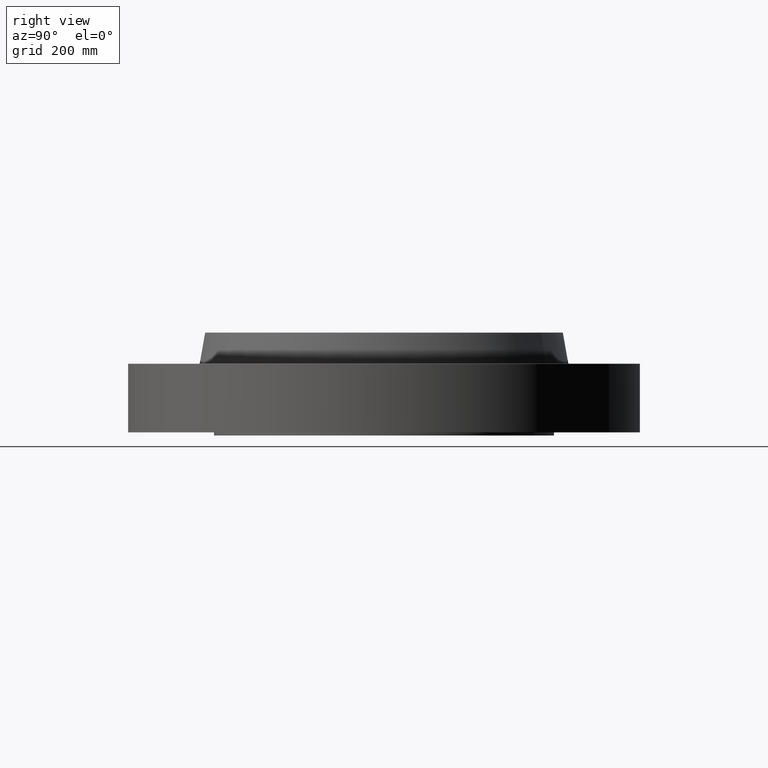
[diagram: clean part render]
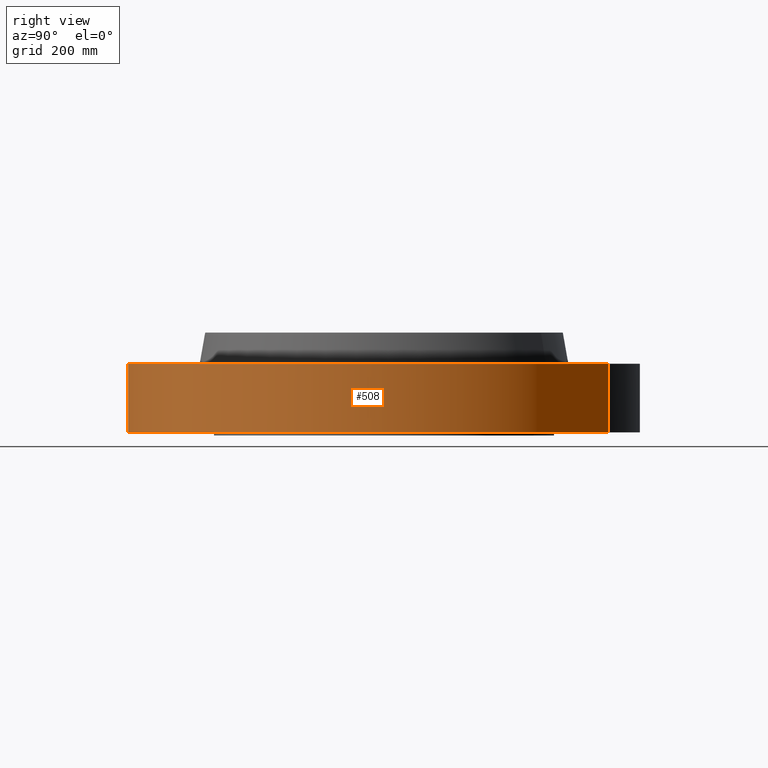
[diagram: same view with one face highlighted and labeled with its STEP entity id]
A machine part, right view. The second image highlights one B-rep face of the part: STEP entity #508.
In plain terms, the highlighted cylindrical surface (partial cylindrical patch) has radius 520.7 mm, axis along (0, 0, -1).
Its self-contained STEP definition (entity closure, byte-faithful):
#455=AXIS2_PLACEMENT_3D('Cylinder Axis2P3D',#452,#453,#454) ;
#494=AXIS2_PLACEMENT_3D('Circle Axis2P3D',#492,#493,$) ;
#499=AXIS2_PLACEMENT_3D('Circle Axis2P3D',#497,#498,$) ;
#452=CARTESIAN_POINT('Axis2P3D Location',(0.,0.,3.87500000002)) ;
#461=CARTESIAN_POINT('Vertex',(-9.82822354143,-17.9904425188,2.23792987641E-015)) ;
#463=CARTESIAN_POINT('Vertex',(9.82822354143,17.9904425188,2.23792987641E-015)) ;
#466=CARTESIAN_POINT('Line Origine',(-9.82822354143,-17.9904425188,2.75000000001)) ;
#470=CARTESIAN_POINT('Vertex',(-9.82822354143,-17.9904425188,5.50000000002)) ;
#477=CARTESIAN_POINT('Vertex',(9.82822354143,17.9904425188,5.50000000002)) ;
#480=CARTESIAN_POINT('Line Origine',(9.82822354143,17.9904425188,2.75000000001)) ;
#492=CARTESIAN_POINT('Axis2P3D Location',(0.,0.,2.23792987641E-015)) ;
#497=CARTESIAN_POINT('Axis2P3D Location',(0.,0.,5.50000000002)) ;
#453=DIRECTION('Axis2P3D Direction',(0.,0.,-0.0393700787402)) ;
#454=DIRECTION('Axis2P3D XDirection',(0.0188750212049,0.0345504945626,0.)) ;
#467=DIRECTION('Vector Direction',(0.,0.,-0.0393700787402)) ;
#481=DIRECTION('Vector Direction',(0.,0.,-0.0393700787402)) ;
#493=DIRECTION('Axis2P3D Direction',(0.,0.,-0.0393700787402)) ;
#498=DIRECTION('Axis2P3D Direction',(0.,0.,-0.0393700787402)) ;
#468=VECTOR('Line Direction',#467,0.0393700787402) ;
#482=VECTOR('Line Direction',#481,0.0393700787402) ;
#503=ORIENTED_EDGE('',*,*,#496,.F.) ;
#504=ORIENTED_EDGE('',*,*,#484,.T.) ;
#505=ORIENTED_EDGE('',*,*,#501,.T.) ;
#506=ORIENTED_EDGE('',*,*,#472,.F.) ;
#508=ADVANCED_FACE('PartBody',(#507),#456,.T.) ;
#495=CIRCLE('generated circle',#494,20.5000000001) ;
#500=CIRCLE('generated circle',#499,20.5000000001) ;
#456=CYLINDRICAL_SURFACE('generated cylinder',#455,20.5000000001) ;
#472=EDGE_CURVE('',#462,#471,#469,.F.) ;
#484=EDGE_CURVE('',#464,#478,#483,.F.) ;
#496=EDGE_CURVE('',#464,#462,#495,.T.) ;
#501=EDGE_CURVE('',#478,#471,#500,.T.) ;
#502=EDGE_LOOP('',(#503,#504,#505,#506)) ;
#507=FACE_OUTER_BOUND('',#502,.T.) ;
#469=LINE('Line',#466,#468) ;
#483=LINE('Line',#480,#482) ;
#462=VERTEX_POINT('',#461) ;
#464=VERTEX_POINT('',#463) ;
#471=VERTEX_POINT('',#470) ;
#478=VERTEX_POINT('',#477) ;